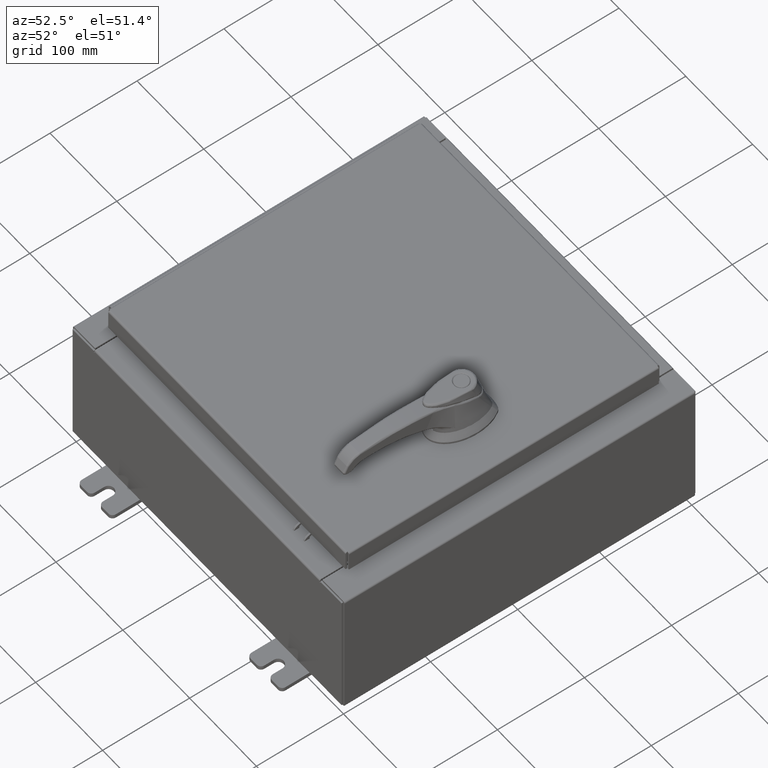
[diagram: clean part render]
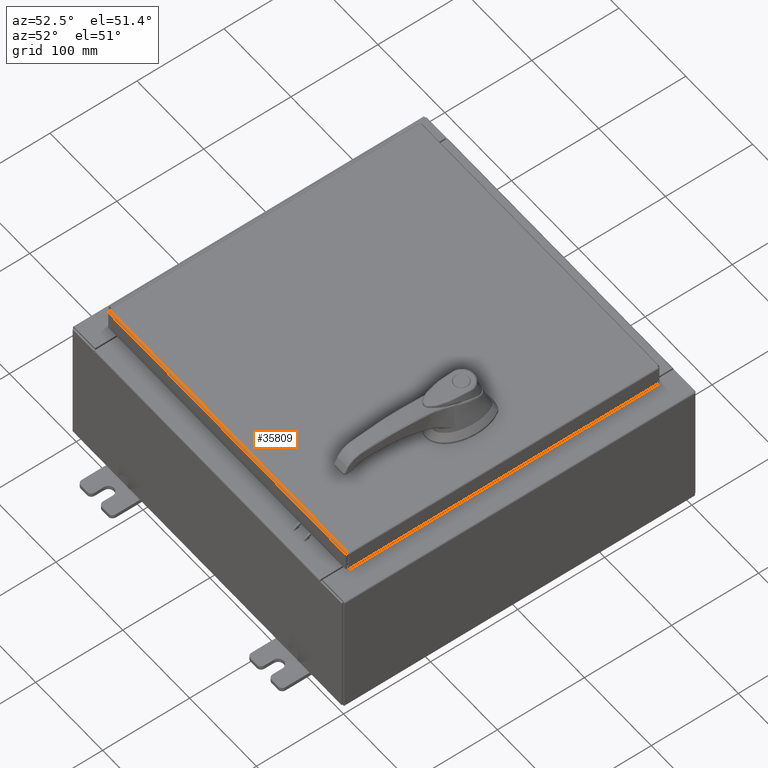
[diagram: same view with one face highlighted and labeled with its STEP entity id]
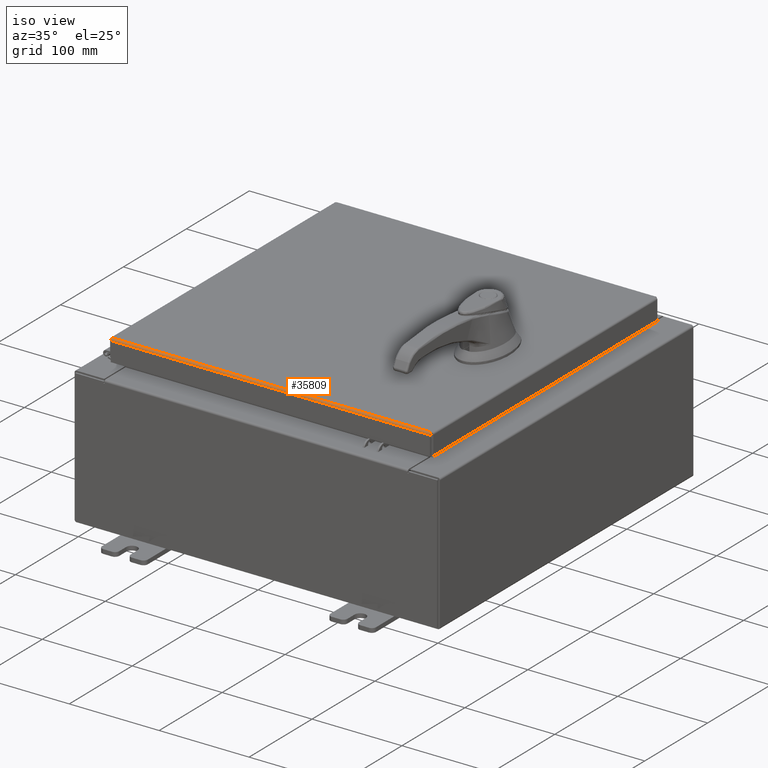
[diagram: same view with one face highlighted and labeled with its STEP entity id]
A machine part, auxiliary view. The second image highlights one B-rep face of the part: STEP entity #35809.
A second angle (iso view) of the same face is appended — the face is thin or edge-on in the first view.
In plain terms, the highlighted cylindrical surface (edge-blend (fillet) strip) has radius 2.2276 mm, axis along (-1, 0, 0).
Its self-contained STEP definition (entity closure, byte-faithful):
#576 = CARTESIAN_POINT ( 'NONE',  ( 6.989919288125422600, -7.050467384578525700, -0.01106893374133177300 ) ) ;
#1812 = CYLINDRICAL_SURFACE ( 'NONE', #4870, 0.08770000000000026400 ) ;
#4172 = CARTESIAN_POINT ( 'NONE',  ( -6.989348220313560800, -7.091717403743812700, -0.06474471054169114700 ) ) ;
#4870 = AXIS2_PLACEMENT_3D ( 'NONE', #93061, #35614, #52334 ) ;
#5208 = CARTESIAN_POINT ( 'NONE',  ( -6.990300000000001300, -7.006300000000000400, -2.219626494852214000E-016 ) ) ;
#6197 = CARTESIAN_POINT ( 'NONE',  ( -6.990300000000001300, -7.006300000000000400, -2.219626494852214000E-016 ) ) ;
#8820 = CARTESIAN_POINT ( 'NONE',  ( 6.989633754219490800, -7.076430782078319700, -0.03380425265820006400 ) ) ;
#13459 = CARTESIAN_POINT ( 'NONE',  ( 7.077999999999999400, -7.094000000000000300, -0.08769999999999997200 ) ) ;
#14217 = ORIENTED_EDGE ( 'NONE', *, *, #101342, .F. ) ;
#14932 = VERTEX_POINT ( 'NONE', #84666 ) ;
#16513 = B_SPLINE_CURVE_WITH_KNOTS ( 'NONE', 3,
 ( #69573, #61384, #4172, #20622, #77786, #28857, #86002, #37065, #94199, #45267 ),
 .UNSPECIFIED., .F., .F.,
 ( 4, 2, 2, 2, 4 ),
 ( 0.0000000000000000000, 0.2500000000000000000, 0.5000000000000000000, 0.7500000000000000000, 1.000000000000000000 ),
 .UNSPECIFIED. ) ;
#17042 = CARTESIAN_POINT ( 'NONE',  ( 6.989348220313555500, -7.091717403743812700, -0.06474471054169114700 ) ) ;
#20622 = CARTESIAN_POINT ( 'NONE',  ( -6.989538576250845700, -7.082931066258667300, -0.04353261542147220100 ) ) ;
#21168 = EDGE_CURVE ( 'NONE', #43581, #36004, #16513, .T. ) ;
#24844 = VECTOR ( 'NONE', #62804, 39.37007874015748100 ) ;
#25286 = CARTESIAN_POINT ( 'NONE',  ( 6.989157864376268800, -7.094000000000000300, -0.08769999999999997200 ) ) ;
#25661 = EDGE_CURVE ( 'NONE', #14932, #61583, #78812, .T. ) ;
#26585 = VECTOR ( 'NONE', #63128, 39.37007874015748100 ) ;
#28857 = CARTESIAN_POINT ( 'NONE',  ( -6.989824110156780200, -7.060195747341798400, -0.01756921792167976200 ) ) ;
#33677 = EDGE_LOOP ( 'NONE', ( #14217, #36101, #49251, #66696 ) ) ;
#33790 = CARTESIAN_POINT ( 'NONE',  ( 6.989157864376268800, -7.094000000000000300, -0.08769999999999997200 ) ) ;
#35614 = DIRECTION ( 'NONE',  ( -1.000000000000000000, 0.0000000000000000000, 0.0000000000000000000 ) ) ;
#35809 = ADVANCED_FACE ( 'NONE', ( #88770 ), #1812, .T. ) ;
#36004 = VERTEX_POINT ( 'NONE', #6197 ) ;
#36101 = ORIENTED_EDGE ( 'NONE', *, *, #21168, .F. ) ;
#37065 = CARTESIAN_POINT ( 'NONE',  ( -6.990109644062713700, -7.029255289458310700, -0.002282596256188945500 ) ) ;
#43581 = VERTEX_POINT ( 'NONE', #96802 ) ;
#45267 = CARTESIAN_POINT ( 'NONE',  ( -6.990300000000001300, -7.006300000000000400, -2.219626494852214000E-016 ) ) ;
#49251 = ORIENTED_EDGE ( 'NONE', *, *, #58107, .T. ) ;
#49570 = CARTESIAN_POINT ( 'NONE',  ( 6.990109644062712800, -7.029255289458311600, -0.002282596256188945100 ) ) ;
#52334 = DIRECTION ( 'NONE',  ( 0.0000000000000000000, -1.000000000000000000, 3.893740013774593800E-015 ) ) ;
#57810 = CARTESIAN_POINT ( 'NONE',  ( 6.989824110156780200, -7.060195747341800200, -0.01756921792167975800 ) ) ;
#58107 = EDGE_CURVE ( 'NONE', #43581, #61583, #90018, .T. ) ;
#61384 = CARTESIAN_POINT ( 'NONE',  ( -6.989253042344915700, -7.093999999999999400, -0.07622009684500727400 ) ) ;
#61583 = VERTEX_POINT ( 'NONE', #33790 ) ;
#62804 = DIRECTION ( 'NONE',  ( 1.000000000000000000, 4.764927686412500400E-031, -1.827821792760540300E-045 ) ) ;
#63128 = DIRECTION ( 'NONE',  ( 1.000000000000000000, -0.0000000000000000000, -0.0000000000000000000 ) ) ;
#66036 = CARTESIAN_POINT ( 'NONE',  ( 6.989538576250843100, -7.082931066258669100, -0.04353261542147220100 ) ) ;
#66696 = ORIENTED_EDGE ( 'NONE', *, *, #25661, .F. ) ;
#69573 = CARTESIAN_POINT ( 'NONE',  ( -6.989157864376270600, -7.094000000000000300, -0.08769999999999997200 ) ) ;
#73874 = CARTESIAN_POINT ( 'NONE',  ( 6.990204822031355300, -7.017779903154994300, -2.229964298539175300E-016 ) ) ;
#74211 = CARTESIAN_POINT ( 'NONE',  ( 6.989253042344914000, -7.094000000000000300, -0.07622009684500730100 ) ) ;
#77786 = CARTESIAN_POINT ( 'NONE',  ( -6.989633754219491700, -7.076430782078321400, -0.03380425265820006400 ) ) ;
#78812 = B_SPLINE_CURVE_WITH_KNOTS ( 'NONE', 3,
 ( #82086, #73874, #49570, #576, #57810, #8820, #66036, #17042, #74211, #25286 ),
 .UNSPECIFIED., .F., .F.,
 ( 4, 2, 2, 2, 4 ),
 ( 0.0000000000000000000, 0.2500000000000000000, 0.5000000000000000000, 0.7500000000000000000, 1.000000000000000000 ),
 .UNSPECIFIED. ) ;
#82086 = CARTESIAN_POINT ( 'NONE',  ( 6.990299999999998600, -7.006300000000000400, -2.219626494852214000E-016 ) ) ;
#84666 = CARTESIAN_POINT ( 'NONE',  ( 6.990299999999998600, -7.006300000000000400, -2.219626494852214000E-016 ) ) ;
#86002 = CARTESIAN_POINT ( 'NONE',  ( -6.989919288125423500, -7.050467384578529300, -0.01106893374133177300 ) ) ;
#86651 = LINE ( 'NONE', #5208, #26585 ) ;
#88770 = FACE_OUTER_BOUND ( 'NONE', #33677, .T. ) ;
#90018 = LINE ( 'NONE', #13459, #24844 ) ;
#93061 = CARTESIAN_POINT ( 'NONE',  ( -6.990300000000001300, -7.006300000000000400, -0.08770000000000031900 ) ) ;
#94199 = CARTESIAN_POINT ( 'NONE',  ( -6.990204822031358000, -7.017779903154993400, -2.224295180388261000E-016 ) ) ;
#96802 = CARTESIAN_POINT ( 'NONE',  ( -6.989157864376270600, -7.094000000000000300, -0.08769999999999997200 ) ) ;
#101342 = EDGE_CURVE ( 'NONE', #36004, #14932, #86651, .T. ) ;